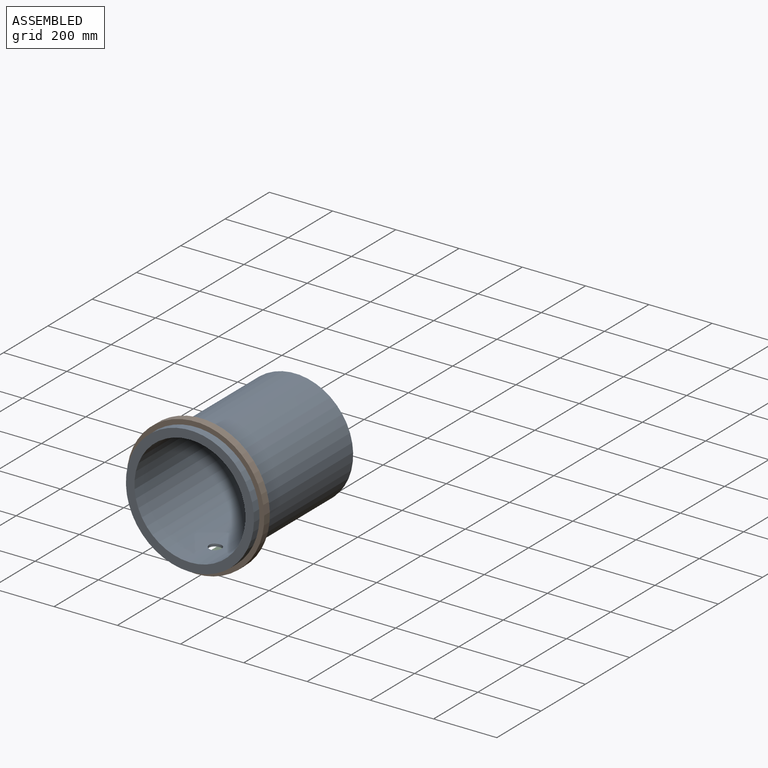
[diagram: assembled view]
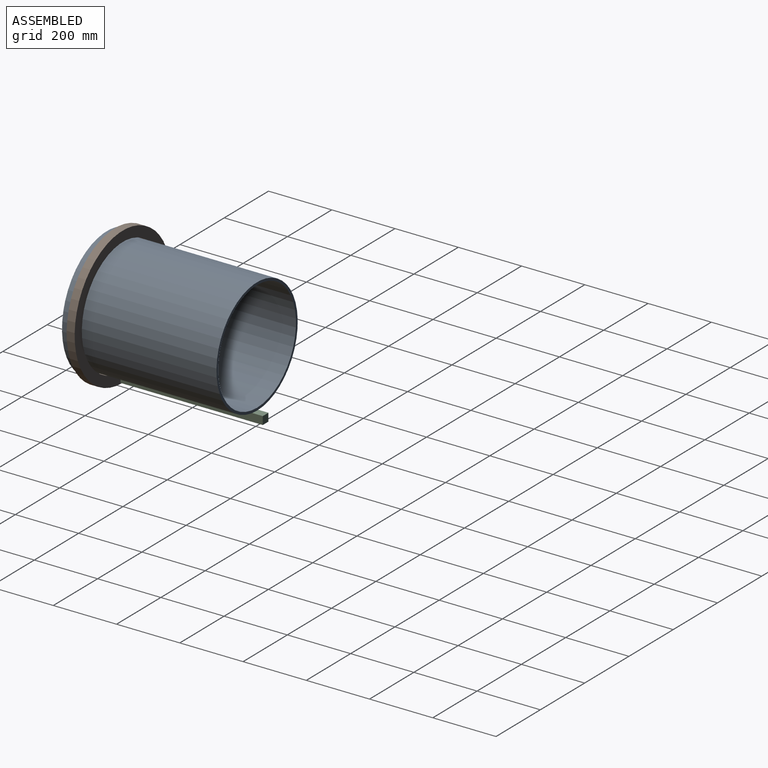
[diagram: assembled view, second angle]
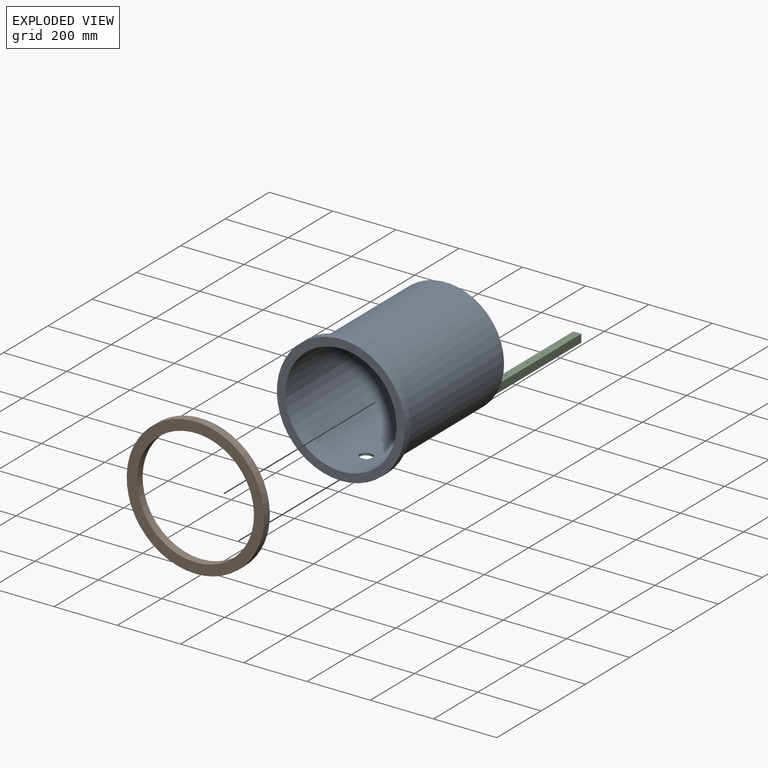
[diagram: exploded view]
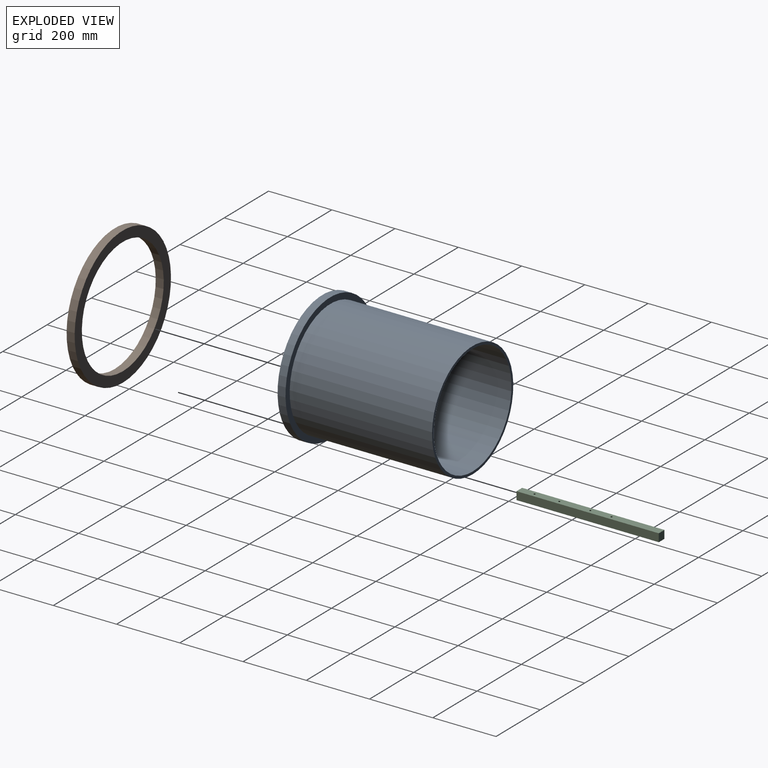
[diagram: exploded view, second angle]
ASSEMBLY  parts=3 mates=2
PART A: 7 faces, bbox 405x475x405 mm
  f0: cylinder r=175.5mm len=475mm, axis (0,1,0), area 522523.5mm2, adj f2,f4,f6
  f1: cylinder r=183.5mm len=450mm, axis (0,1,0), area 517575.6mm2, adj f2,f5,f6
  f2: plane 367x367mm, normal (0,1,0), area 9022.7mm2, adj f0,f1
  f3: cylinder r=202.5mm len=405mm, axis (0,1,0), area 31808.6mm2, adj f4,f5
  f4: plane 405x405mm, normal (0,-1,0), area 32063.1mm2, adj f0,f3
  f5: plane 405x405mm, normal (0,1,0), area 23040.4mm2, adj f1,f3
  f6: cylinder r=20mm len=40mm, axis (0,0,1), area 1008.5mm2, adj f0,f1
PART B: 4 faces, bbox 435x25.4x435 mm
  f0: cylinder r=185mm len=370mm, axis (0,1,0), area 29524.7mm2, adj f2,f3
  f1: cylinder r=217.5mm len=435mm, axis (0,1,0), area 34711.5mm2, adj f2,f3
  f2: plane 435x435mm, normal (0,-1,0), area 41096mm2, adj f0,f1
  f3: plane 435x435mm, normal (0,1,0), area 41096mm2, adj f0,f1
PART C: 22 faces, bbox 25.4x450x25.4 mm
  f0: plane 450x25.4mm, normal (-1,0,0), area 11430mm2, adj f1,f3,f4,f5
  f1: plane 450x25.4mm, normal (0,0,-1), area 11323.7mm2, adj f0,f2,f4,f5,f6,f10,f14,f18
  f2: plane 450x25.4mm, normal (1,0,0), area 11430mm2, adj f1,f3,f4,f5
  f3: plane 450x25.4mm, normal (0,0,1), area 10638.3mm2, adj f0,f2,f4,f5,f9,f13,f17,f21
  f4: plane 25.4x25.4mm, normal (0,-1,0), area 645.2mm2, adj f0,f1,f2,f3
  f5: plane 25.4x25.4mm, normal (0,1,0), area 645.2mm2, adj f0,f1,f2,f3
  f6: cone r=0mm half-angle=59deg, axis (0,0,1), area 26.7mm2, adj f1,f7
  f7: cylinder r=3.97mm len=15.24mm, axis (0,0,1), area 380mm2, adj f6,f8
  f8: plane 15.88x15.88mm, normal (0,0,1), area 148.4mm2, adj f7,f9
  f9: cylinder r=7.94mm len=15.88mm, axis (0,0,1), area 475mm2, adj f3,f8
  f10: cone r=0mm half-angle=59deg, axis (0,0,1), area 26.7mm2, adj f1,f11
  f11: cylinder r=3.97mm len=15.24mm, axis (0,0,1), area 380mm2, adj f10,f12
  f12: plane 15.88x15.88mm, normal (0,0,1), area 148.4mm2, adj f11,f13
  f13: cylinder r=7.94mm len=15.88mm, axis (0,0,1), area 475mm2, adj f3,f12
  f14: cone r=0mm half-angle=59deg, axis (0,0,1), area 26.7mm2, adj f1,f15
  f15: cylinder r=3.97mm len=15.24mm, axis (0,0,1), area 380mm2, adj f14,f16
  f16: plane 15.88x15.88mm, normal (0,0,1), area 148.4mm2, adj f15,f17
  f17: cylinder r=7.94mm len=15.88mm, axis (0,0,1), area 475mm2, adj f3,f16
  f18: cone r=0mm half-angle=59deg, axis (0,0,1), area 26.7mm2, adj f1,f19
  f19: cylinder r=3.97mm len=15.24mm, axis (0,0,1), area 380mm2, adj f18,f20
  f20: plane 15.88x15.88mm, normal (0,0,1), area 148.4mm2, adj f19,f21
  f21: cylinder r=7.94mm len=15.88mm, axis (0,0,1), area 475mm2, adj f3,f20
PLACE A t=(-0.56,203.81,-0.35)mm
PLACE B t=(-0.56,-220.79,-0.35)mm
PLACE C rot(axis=(0,-1,0),180deg) t=(9.97,229.21,-188.93)mm
MATE planar B.f1 <-> A.f3  axis (0,-1,0) through (-0.56,-246.19,-0.35)mm
MATE planar C.f4 <-> B.f1  axis (0,-1,0) through (-2.73,-220.79,-201.63)mm
